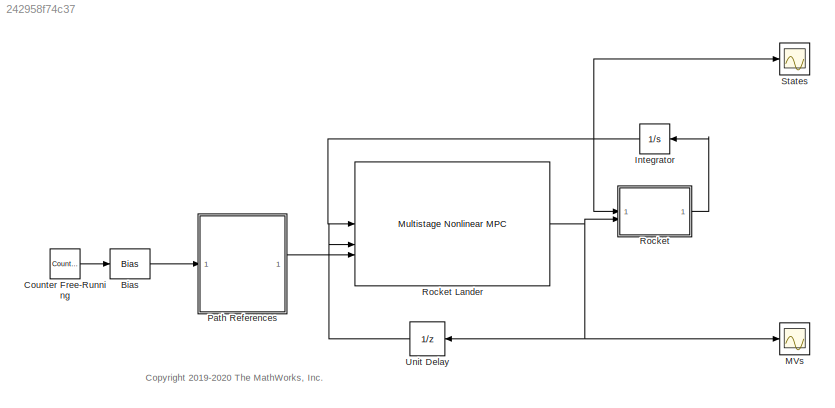
MODEL slx_242958f74c37
KIND model
CONFIG AbsTol = auto
CONFIG EnableMultiTasking = off
CONFIG FixedStep = auto
CONFIG MaxStep = auto
CONFIG MinStep = auto
CONFIG RelTol = 1e-3
CONFIG SampleTimeConstraint = Unconstrained
CONFIG SolverName = VariableStepAuto
CONFIG StartTime = 0.0
CONFIG StopTime = 15
BLOCK [Bias] Bias
  Bias = 1
  SaturateOnIntegerOverflow = off
BLOCK [Reference] Counter Free-Running  REF=simulink/Sources/Counter
Free-Running
  SourceBlock = simulink/Sources/Counter\nFree-Running
  SourceType = Counter Free-Running
BLOCK [Integrator] Integrator
  InitialCondition = x0
BLOCK [Scope] MVs
  Floating = off
  NumInputPorts = 1
  ScopeSpecificationString = Simulink.scopes.TimeScopeBlockCfg('CurrentConfiguration', extmgr.ConfigurationSet(extmgr.Configuration('Core','General UI',true),extmgr.Configuration('Core','Source UI',true),extmgr.Configuration('Sources','WiredSimulink',true,'DataLoggingVariableName','ScopeData1'),extmgr.Configuration('Visuals','Time Domain',true,'SerializedDisplays',{struct('MinYLimReal','-1.00000','MaxYLimReal','9.00000','YLab...<+1451ch>
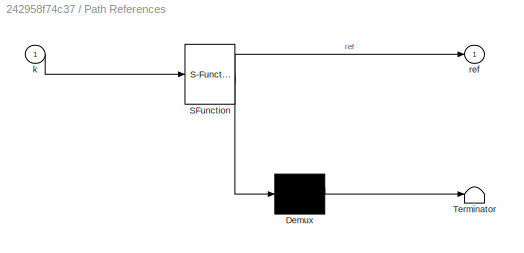
BLOCK [SubSystem] Path References
  ErrorFcn = Stateflow.Translate.translate
  PermitHierarchicalResolution = ExplicitOnly
  SFBlockType = MATLAB Function
  TreatAsAtomicUnit = on
BLOCK [Demux] Path References/ Demux 
  Outputs = 1
BLOCK [S-Function] Path References/ SFunction 
  EnableBusSupport = off
  FunctionName = sf_sfun
  Parameters = pLander,references
  PortCounts = [1 2]
  SFcnIsStateOwnerBlock = off
  SFunctionDeploymentMode = off
  Tag = Stateflow S-Function 1
BLOCK [Terminator] Path References/ Terminator 
BLOCK [Inport] Path References/k
BLOCK [Outport] Path References/ref
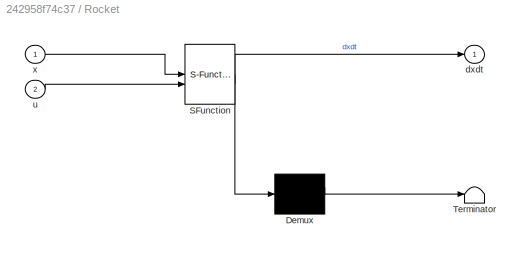
BLOCK [SubSystem] Rocket
  ErrorFcn = Stateflow.Translate.translate
  PermitHierarchicalResolution = ExplicitOnly
  SFBlockType = MATLAB Function
  TreatAsAtomicUnit = on
BLOCK [Reference] Rocket Lander  REF=mpclib/Multistage Nonlinear MPC  (lib defined in mdl_ae329e0e0455)
  SCDEnableBlockLinearizationSpecification = on
  SourceBlock = mpclib/Multistage Nonlinear MPC
  SourceType = NonlinearMPCMultistage
BLOCK [Demux] Rocket/ Demux 
  Outputs = 1
BLOCK [S-Function] Rocket/ SFunction 
  EnableBusSupport = off
  FunctionName = sf_sfun
  PortCounts = [2 2]
  SFcnIsStateOwnerBlock = off
  SFunctionDeploymentMode = off
  Tag = Stateflow S-Function 2
BLOCK [Terminator] Rocket/ Terminator 
BLOCK [Outport] Rocket/dxdt
BLOCK [Inport] Rocket/u
  Port = 2
BLOCK [Inport] Rocket/x
BLOCK [Scope] States
  Floating = off
  NumInputPorts = 1
  ScopeSpecificationString = Simulink.scopes.TimeScopeBlockCfg('CurrentConfiguration', extmgr.ConfigurationSet(extmgr.Configuration('Core','General UI',true),extmgr.Configuration('Core','Source UI',true),extmgr.Configuration('Sources','WiredSimulink',true),extmgr.Configuration('Visuals','Time Domain',true,'SerializedDisplays',{struct('MinYLimReal','-42.83352','MaxYLimReal','85.50164','YLabelReal','','MinYLimMag','0.00000','Ma...<+1447ch>
BLOCK [UnitDelay] Unit Delay
  HasFrameUpgradeWarning = on
  InitialCondition = u0
  SampleTime = -1
ANNOTATION (root): <copyright redacted>
LINE Bias:1 -> Path References:1
LINE Counter Free-Running:1 -> Bias:1
NET Integrator:1 -> Rocket Lander:1, Rocket:1, States:1
LINE Path References:1 -> Rocket Lander:3
NET Rocket Lander:1 -> MVs:1, Rocket:2, Unit Delay:1
LINE Rocket:1 -> Integrator:1
LINE Unit Delay:1 -> Rocket Lander:2
note: NET lines group one-source signal fan-out (src -> all destinations, sorted); 1:1 wires keep LINE
CHART Rocket states=1 transitions=1
  STATE_LABEL 'eML_blk_kernel()'
  STATE_LABEL 'SCRIPT:\nfunction dxdt = fcn(x,u)\ndxdt = RocketStateFcn(x,u);\n\n'
CHART Path References states=1 transitions=1
  STATE_LABEL 'eML_blk_kernel()'
  STATE_LABEL 'SCRIPT:\nfunction ref = fcn(k,references,pLander)\nref = RocketLanderReferenceSignal(k,references,pLander);\n'
CHART  states=0 transitions=0
CHART  states=0 transitions=0
